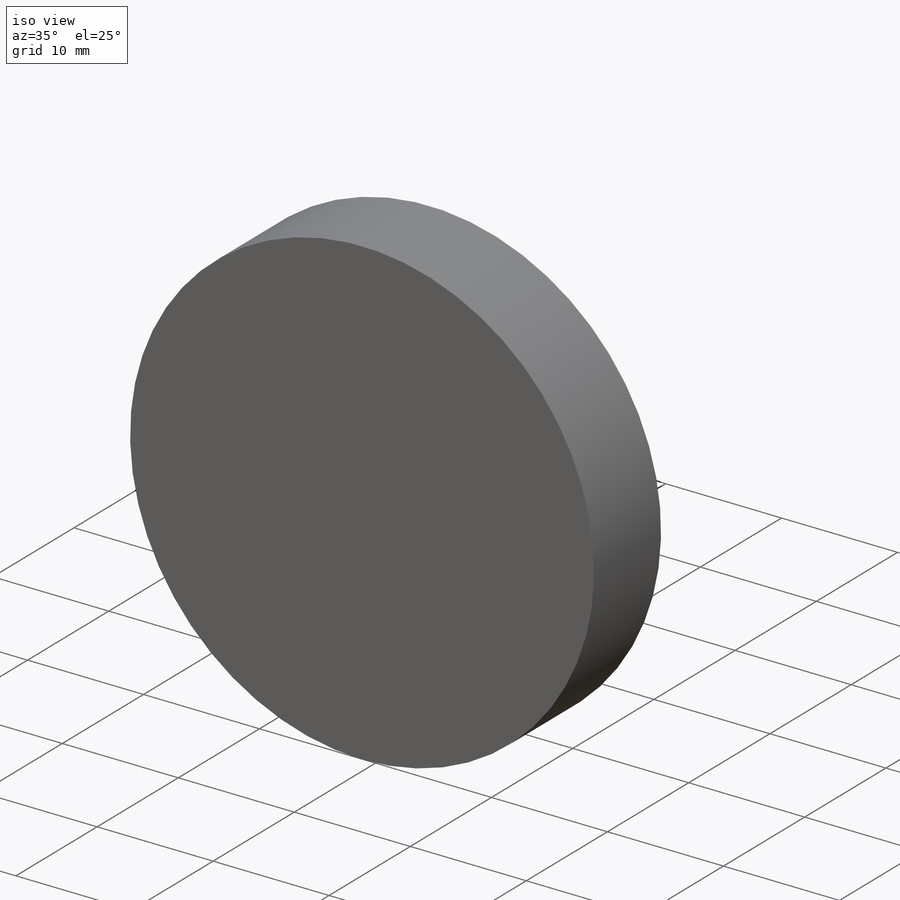
[diagram: iso view]
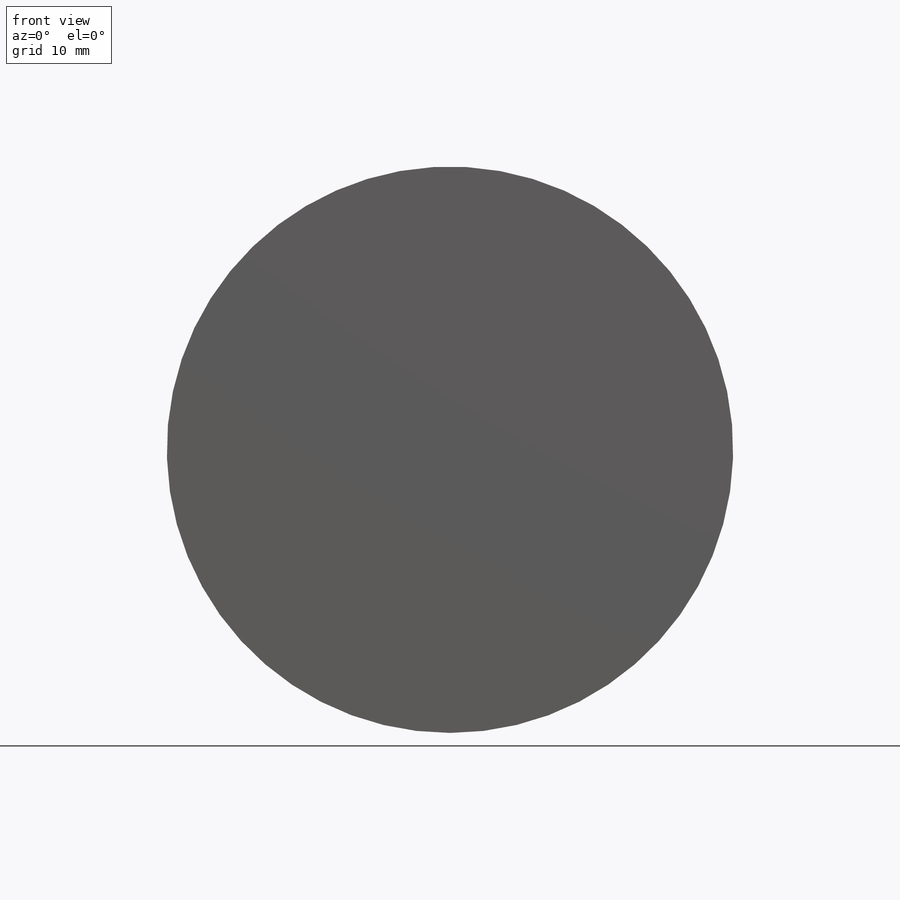
[diagram: front view]
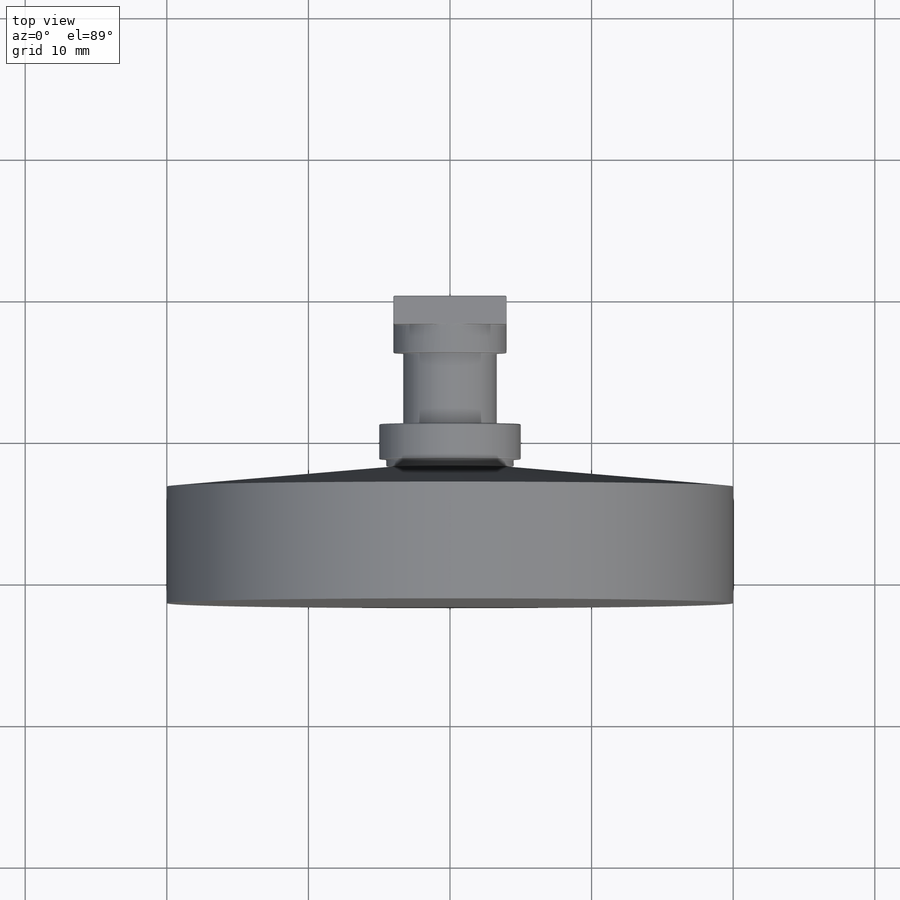
[diagram: top view]
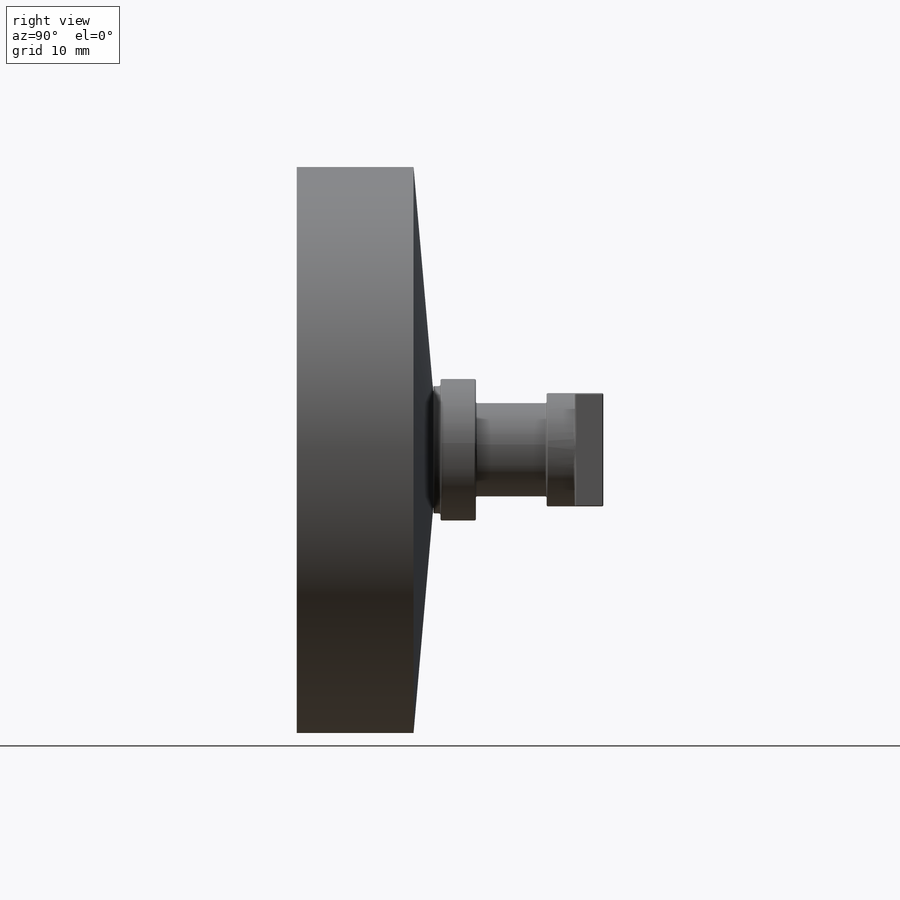
[diagram: right view]
SOLIDWORKS PART (.sldprt)
format: sldprt  version: not decoded by parser v0  size: 482,304 bytes
history: native  units: mm
features: sketch x5, revolve x3, material x1, extrude x1, fillet x1 (+12 scaffold rows collapsed)
feature tree (23):
  scaffold x12  (default folders/planes/origin — collapsed)
  material  "Material <not specified>"
  sketch  "dimensions"  dims[c1.D1=4.0mm c1.D2=12.0mm c1.D3=4.0mm c1.D4=3.3mm c1.D5=5.0mm c1.D6=3.0mm c1.D7=~4.457801mm c2.D7=85.0deg c2.D8=1.0mm c2.D9=0.5mm c2.D10=0.5mm]
  sketch  "Sketch1"  dims[c1.D1=~37.343528mm c1.D2=~34.870447mm c2.D1=8.0mm]
  sketch  "Sketch3"  dims[D1=1.0mm]
  revolve  "Revolve1"  Angle=360deg
  extrude  "Boss-Extrude1"  Depth=2mm
  sketch  "Sketch4"  dims[c1.D1=~2.224333mm c1.D3=~4.027889mm c2.D1=0.05mm c2.D2=0.3mm c2.D3=0.1mm c2.D4=~0.889311mm]
  revolve  "Revolve2"  Angle=360deg
  fillet  "Fillet1"  Radius=0.1mm
  sketch  "Sketch5"  dims[D1=10.0mm D2=20.0mm]
  revolve  "FOV"  Angle=360deg
decode coverage: 10 of 10 modeling features carry decoded parameters
note: ~ marks probable driven/reference dimensions
note: suppression state not decoded; provenance and decode notes live in map.json
